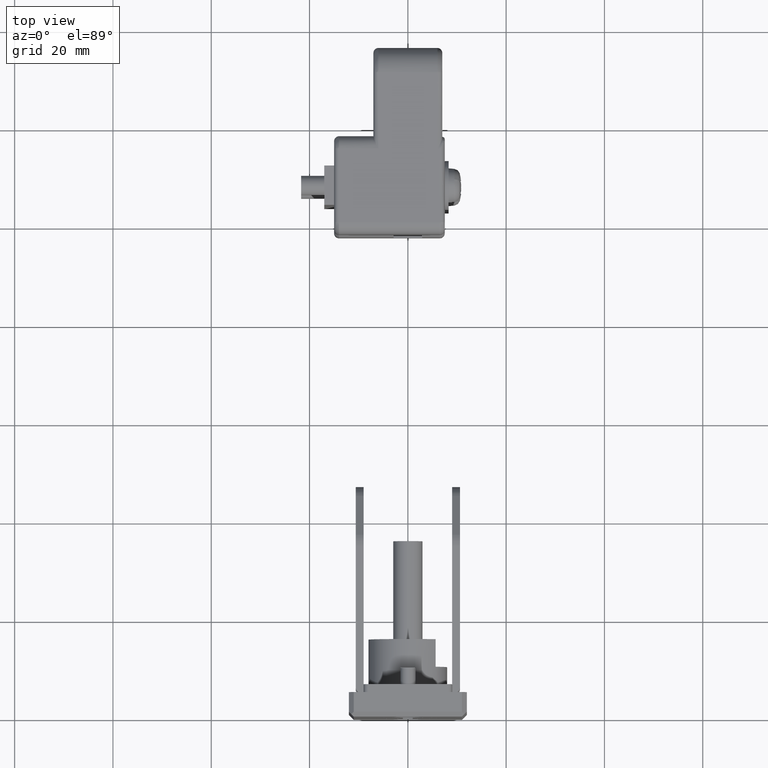
[diagram: clean part render]
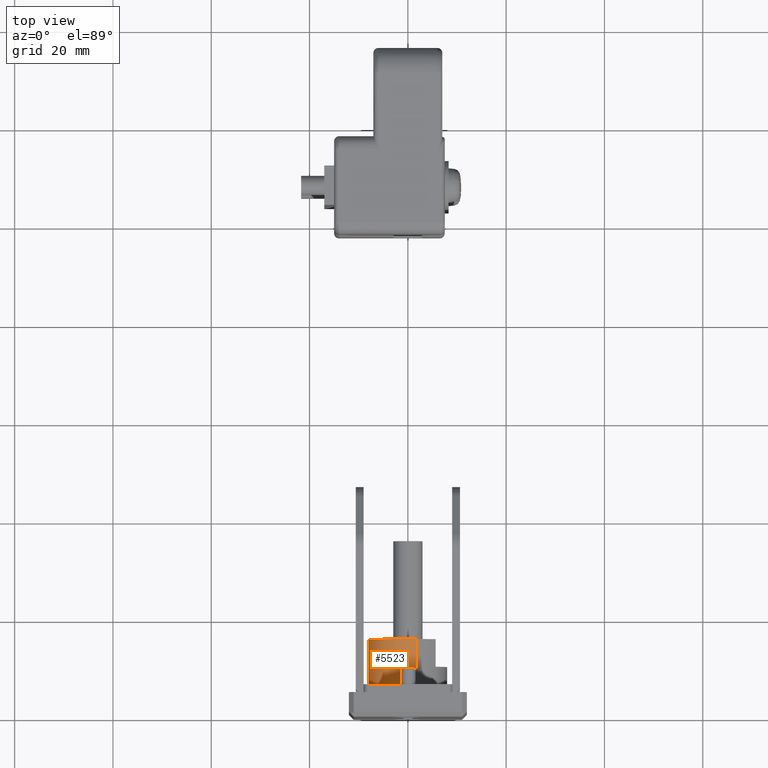
[diagram: same view with one face highlighted and labeled with its STEP entity id]
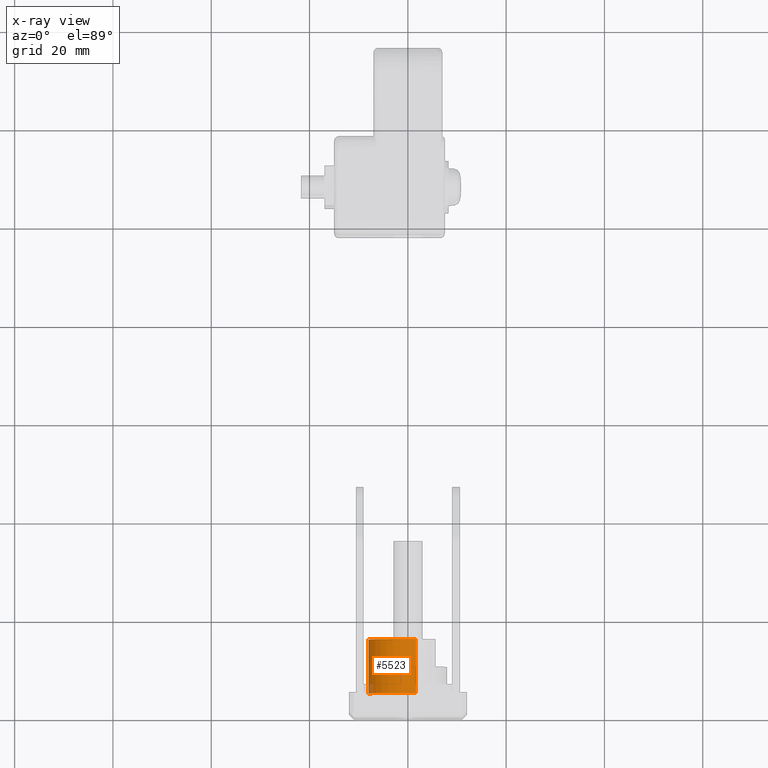
[diagram: x-ray of the same camera — body ghosted, the highlighted face saturated]
A machine part, top view. The second image highlights one B-rep face of the part: STEP entity #5523.
The next image is the same camera in x-ray: the body ghosted, the highlighted face saturated — about 2% of this face is hidden behind the body in this view.
In plain terms, the highlighted face is a freeform B-spline surface patch.
Its self-contained STEP definition (entity closure, byte-faithful):
#5440=CARTESIAN_POINT('',(16.274999999999999,-1.668570553488796,7.824057279188981));
#5441=CARTESIAN_POINT('',(16.275000000000002,-0.739857310345528,8.022116101465977));
#5442=CARTESIAN_POINT('',(16.274999999999999,0.209414879599379,7.997258618314301));
#5443=CARTESIAN_POINT('',(16.274999999999999,8.206673497913679,7.787843738714922));
#5444=CARTESIAN_POINT('',(16.274999999999999,7.997258618314301,-0.209414879599379));
#5445=CARTESIAN_POINT('',(4.718125000000001,-1.668570553488796,7.824057279188981));
#5446=CARTESIAN_POINT('',(4.718125000000001,-0.739857310345528,8.022116101465977));
#5447=CARTESIAN_POINT('',(4.718125000000001,0.209414879599379,7.997258618314301));
#5448=CARTESIAN_POINT('',(4.718125000000001,8.206673497913679,7.787843738714922));
#5449=CARTESIAN_POINT('',(4.718125000000001,7.997258618314301,-0.209414879599379));
#5457=(BOUNDED_SURFACE()B_SPLINE_SURFACE(2,1,((#5440,#5445),(#5441,#5446),(#5442,#5447),(#5443,#5448),(#5444,#5449)),.UNSPECIFIED.,.F.,.F.,.U.)B_SPLINE_SURFACE_WITH_KNOTS((3,2,3),(2,2),(0.0,2.120773439350250,15.375607435289290),(0.0,11.556875000000000),.UNSPECIFIED.)GEOMETRIC_REPRESENTATION_ITEM()RATIONAL_B_SPLINE_SURFACE(((0.921270302782944,0.921270302782944),(0.953137084989848,0.953137084989848),(1.0,1.0),(0.707106781186548,0.707106781186548),(1.0,1.0)))REPRESENTATION_ITEM('')SURFACE());
#5458=CARTESIAN_POINT('',(16.0,7.997257800377410,-0.209414858108065));
#5459=VERTEX_POINT('',#5458);
#5460=CARTESIAN_POINT('',(16.0,-1.668574808191583,7.824060211763285));
#5461=VERTEX_POINT('',#5460);
#5462=CARTESIAN_POINT('',(16.000000000000004,7.997257800377410,-0.209414858108065));
#5463=CARTESIAN_POINT('',(15.999999999999998,8.127843649206559,4.777508346152828));
#5464=CARTESIAN_POINT('',(16.0,3.707157297775382,7.089216594875581));
#5465=CARTESIAN_POINT('',(16.000000000000004,1.151734081266996,8.425523326220043));
#5466=CARTESIAN_POINT('',(16.000000000000004,-1.668574808191583,7.824060211763285));
#5474=(BOUNDED_CURVE()B_SPLINE_CURVE(2,(#5462,#5463,#5464,#5465,#5466),.UNSPECIFIED.,.F.,.U.)B_SPLINE_CURVE_WITH_KNOTS((3,2,3),(0.375178467958111,0.666666666666667,0.848163030501488),.UNSPECIFIED.)CURVE()GEOMETRIC_REPRESENTATION_ITEM()RATIONAL_B_SPLINE_CURVE((0.957383784630320,0.830262164877641,1.0,0.894312016690924,0.903715941411643))REPRESENTATION_ITEM(''));
#5475=EDGE_CURVE('',#5459,#5461,#5474,.T.);
#5476=ORIENTED_EDGE('',*,*,#5475,.F.);
#5477=CARTESIAN_POINT('',(5.0,7.997258618311484,-0.209414879706981));
#5478=VERTEX_POINT('',#5477);
#5479=CARTESIAN_POINT('',(16.0,7.997257800377410,-0.209414858108065));
#5480=CARTESIAN_POINT('',(5.0,7.997258618311484,-0.209414879706981));
#5481=QUASI_UNIFORM_CURVE('',1,(#5479,#5480),.UNSPECIFIED.,.F.,.U.);
#5482=EDGE_CURVE('',#5459,#5478,#5481,.T.);
#5483=ORIENTED_EDGE('',*,*,#5482,.T.);
#5484=CARTESIAN_POINT('',(5.0,0.0,8.0));
#5485=VERTEX_POINT('',#5484);
#5486=CARTESIAN_POINT('',(5.0,7.997258618311484,-0.209414879706981));
#5487=CARTESIAN_POINT('',(5.000000000000001,8.0,-0.104725383172794));
#5488=CARTESIAN_POINT('',(5.0,8.0,0.0));
#5489=CARTESIAN_POINT('',(5.000000000000001,8.0,8.0));
#5490=CARTESIAN_POINT('',(5.0,0.0,8.0));
#5498=(BOUNDED_CURVE()B_SPLINE_CURVE(2,(#5486,#5487,#5488,#5489,#5490),.UNSPECIFIED.,.F.,.U.)B_SPLINE_CURVE_WITH_KNOTS((3,2,3),(0.245396708795839,0.250000000000000,0.500000000000000),.UNSPECIFIED.)CURVE()GEOMETRIC_REPRESENTATION_ITEM()RATIONAL_B_SPLINE_CURVE((0.989412425527642,0.994606908888310,1.0,0.707106781186548,1.0))REPRESENTATION_ITEM(''));
#5499=EDGE_CURVE('',#5478,#5485,#5498,.T.);
#5500=ORIENTED_EDGE('',*,*,#5499,.T.);
#5501=CARTESIAN_POINT('',(4.999999999999999,-1.668570553587835,7.824057279167860));
#5502=VERTEX_POINT('',#5501);
#5503=CARTESIAN_POINT('',(5.0,0.0,8.0));
#5504=CARTESIAN_POINT('',(5.0,-0.843561432698150,8.0));
#5505=CARTESIAN_POINT('',(4.999999999999999,-1.668570553587835,7.824057279167860));
#5513=(BOUNDED_CURVE()B_SPLINE_CURVE(2,(#5503,#5504,#5505),.UNSPECIFIED.,.F.,.U.)B_SPLINE_CURVE_WITH_KNOTS((3,3),(0.500000000000000,0.535720349208674),.UNSPECIFIED.)CURVE()GEOMETRIC_REPRESENTATION_ITEM()RATIONAL_B_SPLINE_CURVE((1.0,0.958151007772523,0.928260900476219))REPRESENTATION_ITEM(''));
#5514=EDGE_CURVE('',#5485,#5502,#5513,.T.);
#5515=ORIENTED_EDGE('',*,*,#5514,.T.);
#5516=CARTESIAN_POINT('',(16.0,-1.668574808191583,7.824060211763285));
#5517=CARTESIAN_POINT('',(4.999999999999999,-1.668570553587835,7.824057279167860));
#5518=QUASI_UNIFORM_CURVE('',1,(#5516,#5517),.UNSPECIFIED.,.F.,.U.);
#5519=EDGE_CURVE('',#5461,#5502,#5518,.T.);
#5520=ORIENTED_EDGE('',*,*,#5519,.F.);
#5521=EDGE_LOOP('',(#5476,#5483,#5500,#5515,#5520));
#5522=FACE_OUTER_BOUND('',#5521,.T.);
#5523=ADVANCED_FACE('',(#5522),#5457,.T.);